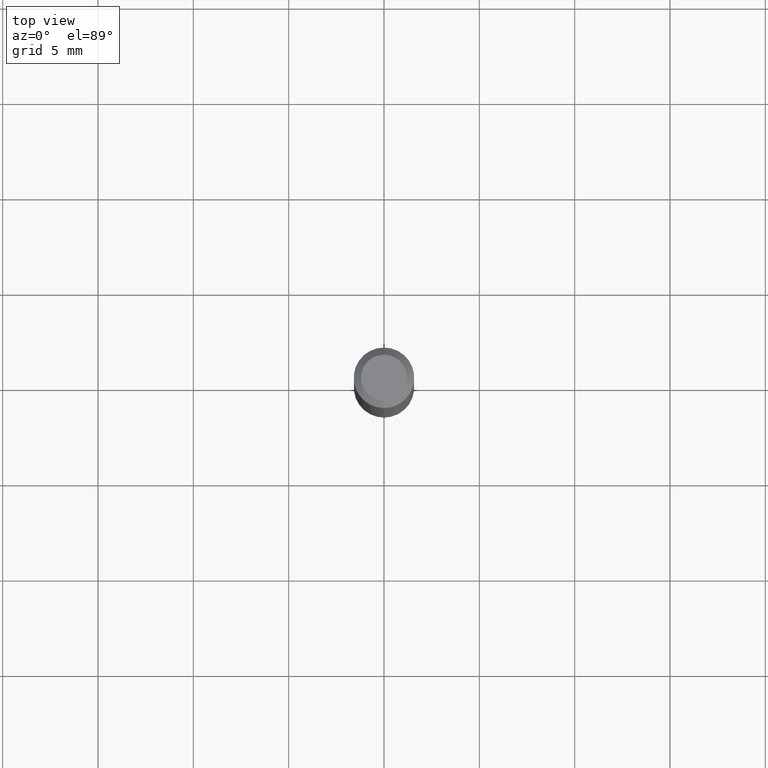
[diagram: clean part render]
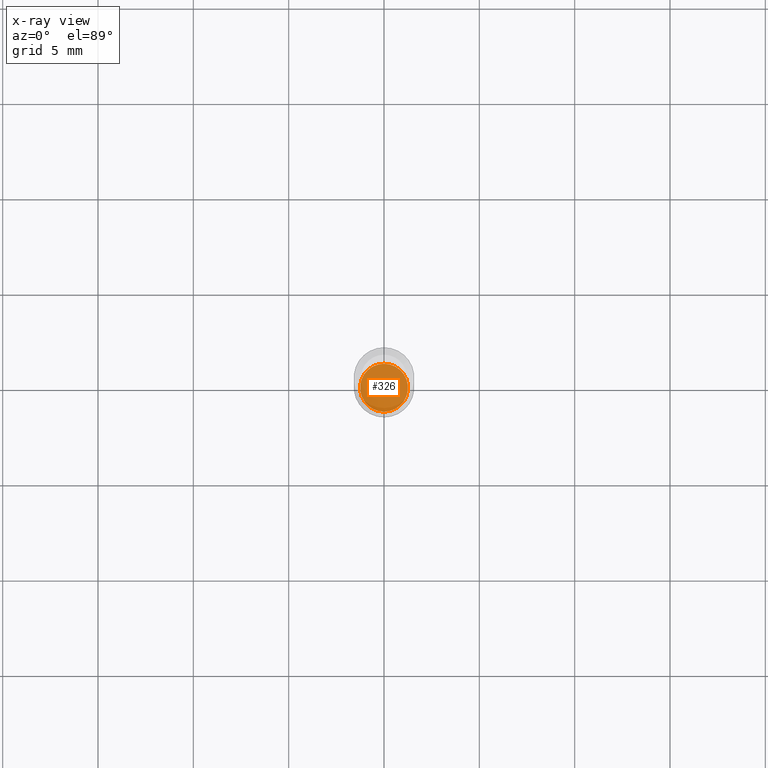
[diagram: x-ray — body ghosted, one internal face saturated and labeled with its STEP entity id]
A machine part, top view, then the same camera in x-ray: the body is ghosted and one INTERNAL B-rep face — a face not visible from any outside direction — is saturated and labeled: STEP entity #326.
In plain terms, the highlighted planar face has unit normal (-0, 0, 1).
Its self-contained STEP definition (entity closure, byte-faithful):
#36 = EDGE_LOOP ( 'NONE', ( #468, #299 ) ) ;
#82 = AXIS2_PLACEMENT_3D ( 'NONE', #447, #391, #351 ) ;
#93 = EDGE_CURVE ( 'NONE', #340, #369, #445, .T. ) ;
#108 = PLANE ( 'NONE',  #109 ) ;
#109 = AXIS2_PLACEMENT_3D ( 'NONE', #133, #294, #343 ) ;
#133 = CARTESIAN_POINT ( 'NONE',  ( 2.934556811647699776E-29, -4.189785849208407808E-15, -1.200000000000000178 ) ) ;
#209 = AXIS2_PLACEMENT_3D ( 'NONE', #280, #437, #356 ) ;
#249 = EDGE_CURVE ( 'NONE', #369, #340, #316, .T. ) ;
#280 = CARTESIAN_POINT ( 'NONE',  ( 2.934556811647699776E-29, -4.189785849208407808E-15, -1.200000000000000178 ) ) ;
#294 = DIRECTION ( 'NONE',  ( -2.445464009706415639E-29, 3.491488207673672253E-15, 1.000000000000000000 ) ) ;
#299 = ORIENTED_EDGE ( 'NONE', *, *, #249, .F. ) ;
#316 = CIRCLE ( 'NONE', #82, 0.04950000000000000233 ) ;
#326 = ADVANCED_FACE ( 'NONE', ( #467 ), #108, .F. ) ;
#340 = VERTEX_POINT ( 'NONE', #428 ) ;
#343 = DIRECTION ( 'NONE',  ( -6.982962677686265922E-15, -1.000000000000000000, 3.491488207673672253E-15 ) ) ;
#351 = DIRECTION ( 'NONE',  ( -6.982962677686265922E-15, -1.000000000000000000, 2.759442417842689940E-15 ) ) ;
#356 = DIRECTION ( 'NONE',  ( -6.982962677686265922E-15, -1.000000000000000000, 2.759442417842689940E-15 ) ) ;
#369 = VERTEX_POINT ( 'NONE', #380 ) ;
#380 = CARTESIAN_POINT ( 'NONE',  ( 3.534950110406793936E-16, 0.04949999999999581124, -1.200000000000000400 ) ) ;
#391 = DIRECTION ( 'NONE',  ( -2.445464009706415919E-29, 3.491488207673672253E-15, 1.000000000000000000 ) ) ;
#428 = CARTESIAN_POINT ( 'NONE',  ( -3.456566525454408447E-16, -0.04950000000000419342, -1.199999999999999956 ) ) ;
#437 = DIRECTION ( 'NONE',  ( -2.445464009706415919E-29, 3.491488207673672253E-15, 1.000000000000000000 ) ) ;
#445 = CIRCLE ( 'NONE', #209, 0.04950000000000000233 ) ;
#447 = CARTESIAN_POINT ( 'NONE',  ( 2.934556811647699776E-29, -4.189785849208407808E-15, -1.200000000000000178 ) ) ;
#467 = FACE_OUTER_BOUND ( 'NONE', #36, .T. ) ;
#468 = ORIENTED_EDGE ( 'NONE', *, *, #93, .F. ) ;